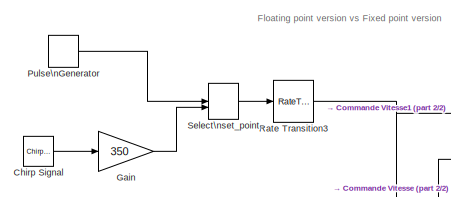
[diagram: root canvas - part 1/2, top left region]
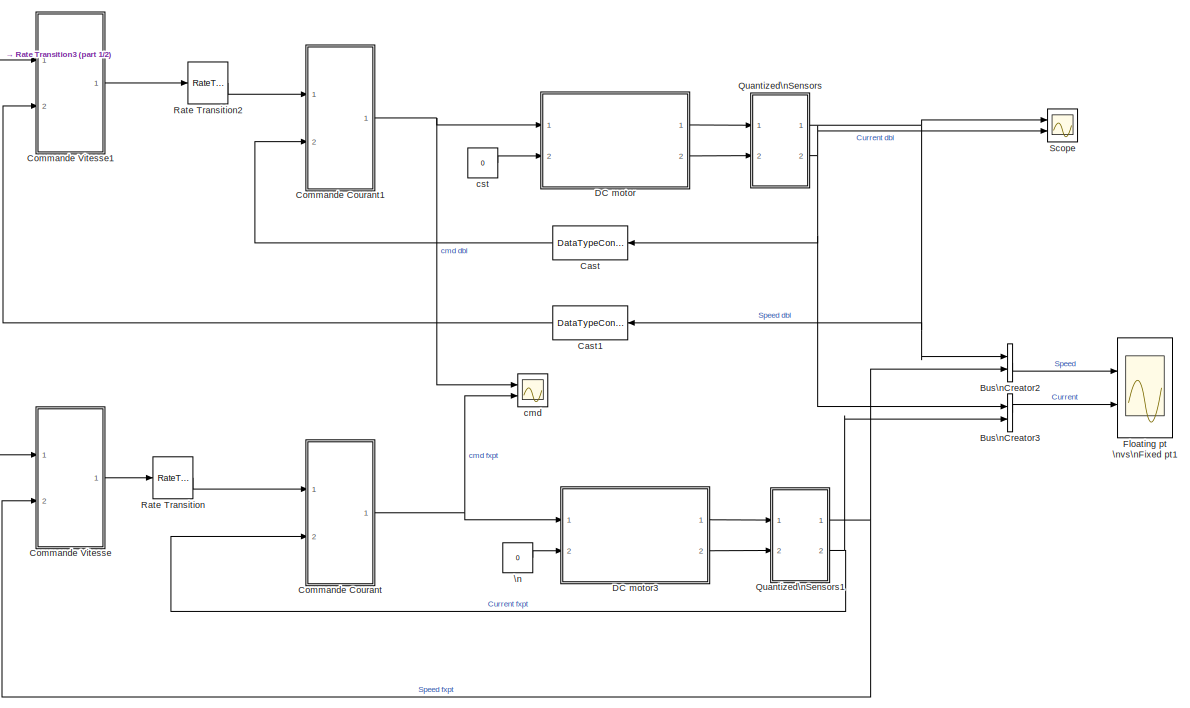
[diagram: root canvas - part 2/2, most of the canvas]
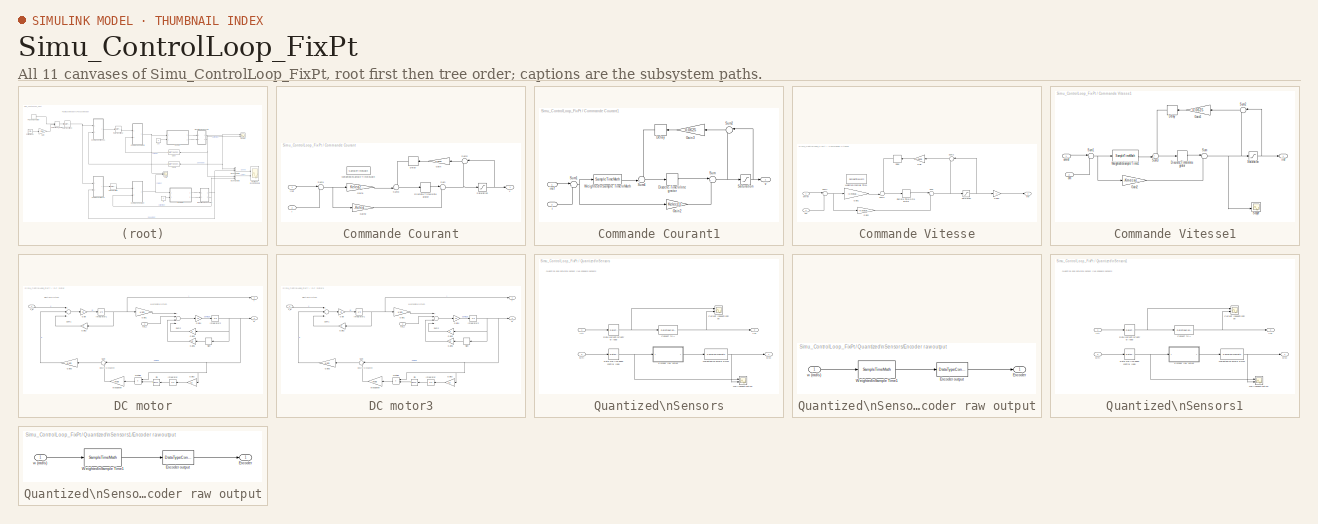
[diagram: thumbnail index - all 11 canvases of the model, root first then tree order]
MODEL Simu_ControlLoop_FixPt
KIND model
CONFIG PreLoadFcn = InitTPV0;
BLOCK [BusCreator] Bus\nCreator2
  DisplayOption = bar
  InheritFromInputs = on
  Inputs = 2
  Ports = [2, 1]
  SID = 991
BLOCK [BusCreator] Bus\nCreator3
  DisplayOption = bar
  InheritFromInputs = on
  Inputs = 2
  Ports = [2, 1]
  SID = 992
BLOCK [DataTypeConversion] Cast
  OutDataTypeStr = double
  RndMeth = Floor
  SID = 882
  SaturateOnIntegerOverflow = off
BLOCK [DataTypeConversion] Cast1
  OutDataTypeStr = double
  RndMeth = Floor
  SID = 883
  SaturateOnIntegerOverflow = off
BLOCK [Reference] Chirp Signal  REF=simulink/Sources/Chirp Signal
  Ports = [0, 1]
  SID = 884
  SourceBlock = simulink/Sources/Chirp Signal
  SourceProductBaseCode = SL
  SourceProductName = Simulink
  SourceType = chirp
  T = 20
  VectorParams1D = on
  f1 = 0.1
  f2 = 5
BLOCK [SubSystem] Commande Courant
  Ports = [2, 1]
  RequestExecContextInheritance = off
  SID = 63
BLOCK [Delay] Commande Courant/Delay
  DelayLength = 1
  InitialCondition = 0
  InputPortMap = u0
  Ports = [1, 1]
  SID = 617
BLOCK [DiscreteIntegrator] Commande Courant/Discrete-Time\nIntegrator
  ICPrevOutput = DiscIntNeverNeededParam
  ICPrevScaledInput = DiscIntNeverNeededParam
  InitialConditionSetting = Auto
  IntegratorMethod = Accumulation: Backward Euler
  OutDataTypeStr = fixdt(1,32)
  OutMax = Vmax*2
  Ports = [1, 1]
  SID = 323
  SampleTime = .00005
  SaturateOnIntegerOverflow = on
BLOCK [Gain] Commande Courant/Gain
  Gain = 0.0625
  OutDataTypeStr = Inherit: Inherit via back propagation
  ParamDataTypeStr = Inherit: Inherit via internal rule
  SID = 616
BLOCK [Gain] Commande Courant/Gain1
  Gain = Kelec(2)*Ts
  OutDataTypeStr = fixdt(1,16)
  OutMax = 2*Imax*Kelec(2)*Ts
  ParamDataTypeStr = Inherit: Inherit via internal rule
  SID = 139
BLOCK [Gain] Commande Courant/Gain2
  Gain = -Kelec(1)
  OutDataTypeStr = fixdt(1,16)
  OutMax = Vmax
  ParamDataTypeStr = Inherit: Inherit via internal rule
  SID = 146
BLOCK [Saturate] Commande Courant/Saturation
  InputPortMap = u0
  LowerLimit = -Vmax
  Ports = [1, 1]
  SID = 311
  UpperLimit = Vmax
BLOCK [Sum] Commande Courant/Sum
  IconShape = round
  InputSameDT = off
  Inputs = |++
  OutDataTypeStr = fixdt(1,16)
  OutMax = Vmax*2
  Ports = [2, 1]
  SID = 141
BLOCK [Sum] Commande Courant/Sum1
  IconShape = round
  InputSameDT = off
  Inputs = |+-
  OutDataTypeStr = fixdt(1,16,12)
  Ports = [2, 1]
  SID = 142
BLOCK [Sum] Commande Courant/Sum2
  AccumDataTypeStr = Inherit: Same as first input
  IconShape = round
  InputSameDT = off
  Inputs = |-+
  Ports = [2, 1]
  SID = 365
  SaturateOnIntegerOverflow = off
BLOCK [Sum] Commande Courant/Sum3
  IconShape = round
  Inputs = -+|
  OutDataTypeStr = Inherit: Same as accumulator
  Ports = [2, 1]
  SID = 366
BLOCK [SampleTimeMath] Commande Courant/Weighted\nSample Time\nMath
  SID = 682
  TsampMathImp = Offline Scaling Adjustment
  TsampMathOp = *
  weightValue = Kelec(2)
BLOCK [Inport] Commande Courant/i
  IconDisplay = Port number
  Port = 2
  SID = 136
BLOCK [Inport] Commande Courant/iref
  IconDisplay = Port number
  SID = 135
BLOCK [Outport] Commande Courant/v
  IconDisplay = Port number
  SID = 143
BLOCK [SubSystem] Commande Courant1
  Ports = [2, 1]
  RequestExecContextInheritance = off
  SID = 885
BLOCK [Delay] Commande Courant1/Delay
  DelayLength = 1
  InitialCondition = 0
  InputPortMap = u0
  Ports = [1, 1]
  SID = 888
BLOCK [DiscreteIntegrator] Commande Courant1/Discrete-Time\nIntegrator
  ICPrevOutput = DiscIntNeverNeededParam
  ICPrevScaledInput = DiscIntNeverNeededParam
  InitialConditionSetting = Auto
  IntegratorMethod = Accumulation: Backward Euler
  Ports = [1, 1]
  SID = 889
  SampleTime = -1
BLOCK [Gain] Commande Courant1/Gain2
  Gain = Kelec(1)
  OutDataTypeStr = Inherit: Inherit via internal rule
  ParamDataTypeStr = Inherit: Inherit via internal rule
  SID = 890
  SaturateOnIntegerOverflow = off
BLOCK [Gain] Commande Courant1/Gain3
  Gain = 0.0625
  OutDataTypeStr = Inherit: Inherit via internal rule
  ParamDataTypeStr = Inherit: Inherit via internal rule
  SID = 891
  SaturateOnIntegerOverflow = off
BLOCK [Saturate] Commande Courant1/Saturation
  InputPortMap = u0
  LowerLimit = -Vmax
  Ports = [1, 1]
  SID = 892
  UpperLimit = Vmax
BLOCK [Sum] Commande Courant1/Sum
  IconShape = round
  InputSameDT = off
  Inputs = |+-
  OutDataTypeStr = Inherit: Inherit via internal rule
  Ports = [2, 1]
  SID = 893
  SaturateOnIntegerOverflow = off
BLOCK [Sum] Commande Courant1/Sum1
  IconShape = round
  InputSameDT = off
  Inputs = |+-
  OutDataTypeStr = Inherit: Inherit via internal rule
  Ports = [2, 1]
  SID = 894
  SaturateOnIntegerOverflow = off
BLOCK [Sum] Commande Courant1/Sum2
  AccumDataTypeStr = Inherit: Same as first input
  IconShape = round
  InputSameDT = off
  Inputs = |-+
  OutDataTypeStr = Inherit: Same as accumulator
  Ports = [2, 1]
  SID = 895
  SaturateOnIntegerOverflow = off
BLOCK [Sum] Commande Courant1/Sum4
  IconShape = round
  InputSameDT = off
  Inputs = -+|
  OutDataTypeStr = Inherit: Inherit via internal rule
  Ports = [2, 1]
  SID = 896
  SaturateOnIntegerOverflow = off
BLOCK [SampleTimeMath] Commande Courant1/Weighted\nSample Time\nMath
  SID = 897
  TsampMathImp = Offline Scaling Adjustment
  TsampMathOp = *
  weightValue = Kelec(2)
BLOCK [Inport] Commande Courant1/i
  IconDisplay = Port number
  Port = 2
  SID = 887
BLOCK [Inport] Commande Courant1/iref
  IconDisplay = Port number
  SID = 886
BLOCK [Outport] Commande Courant1/v
  IconDisplay = Port number
  SID = 898
BLOCK [SubSystem] Commande Vitesse
  Ports = [2, 1]
  RequestExecContextInheritance = off
  SID = 148
BLOCK [Delay] Commande Vitesse/Delay
  DelayLength = 1
  InitialCondition = 0
  InputPortMap = u0
  Ports = [1, 1]
  SID = 614
BLOCK [DiscreteIntegrator] Commande Vitesse/Discrete-Time\nIntegrator
  ICPrevOutput = DiscIntNeverNeededParam
  ICPrevScaledInput = DiscIntNeverNeededParam
  InitialConditionSetting = Auto
  IntegratorMethod = Accumulation: Backward Euler
  OutDataTypeStr = fixdt(1,32)
  OutMax = Imax*2
  OutMin = 0
  Ports = [1, 1]
  SID = 324
  SampleTime = .002
  SaturateOnIntegerOverflow = on
BLOCK [Gain] Commande Vitesse/Gain
  Gain = 0.0625
  OutDataTypeStr = Inherit: Inherit via back propagation
  ParamDataTypeStr = Inherit: Inherit via internal rule
  SID = 577
BLOCK [Gain] Commande Vitesse/Gain1
  Gain = -Kmeca(2)*0.002
  OutDataTypeStr = fixdt(1,16)
  OutMax = abs(Wmax * Kmeca(2) * 0.002)
  OutMin = 0
  ParamDataTypeStr = Inherit: Inherit via internal rule
  SID = 179
  SaturateOnIntegerOverflow = off
BLOCK [Gain] Commande Vitesse/Gain2
  Gain = -Kmeca(1)
  OutDataTypeStr = fixdt(1,16)
  OutMax = Imax*2
  OutMin = -Imax*2
  ParamDataTypeStr = Inherit: Inherit via internal rule
  SID = 180
BLOCK [Gain] Commande Vitesse/Gain3
  Gain = -1
  OutMax = Imax
  OutMin = -Imax
  ParamDataTypeStr = Inherit: Inherit via internal rule
  SID = 407
BLOCK [Saturate] Commande Vitesse/Saturation
  InputPortMap = u0
  LowerLimit = -Imax
  Ports = [1, 1]
  SID = 291
  UpperLimit = Imax
BLOCK [Sum] Commande Vitesse/Sum
  IconShape = round
  InputSameDT = off
  Inputs = |++
  OutDataTypeStr = fixdt(1,16)
  OutMax = Imax*2
  OutMin = -Imax
  Ports = [2, 1]
  SID = 182
BLOCK [Sum] Commande Vitesse/Sum1
  IconShape = round
  InputSameDT = off
  Inputs = |+-
  OutDataTypeStr = fixdt(1,16)
  OutMax = Wmax*2
  OutMin = -Wmax*2
  Ports = [2, 1]
  SID = 183
  SaturateOnIntegerOverflow = off
BLOCK [Sum] Commande Vitesse/Sum2
  AccumDataTypeStr = Inherit: Same as first input
  IconShape = round
  InputSameDT = off
  Inputs = |-+
  OutDataTypeStr = Inherit: Same as accumulator
  Ports = [2, 1]
  SID = 367
  SaturateOnIntegerOverflow = off
BLOCK [Sum] Commande Vitesse/Sum3
  AccumDataTypeStr = Inherit: Same as first input
  IconShape = round
  Inputs = --|
  OutDataTypeStr = Inherit: Same as accumulator
  Ports = [2, 1]
  SID = 368
BLOCK [SampleTimeMath] Commande Vitesse/Weighted\nSample Time1
  SID = 681
  TsampMathImp = Offline Scaling Adjustment
  TsampMathOp = *
  weightValue = -Kmeca(2)
BLOCK [Outport] Commande Vitesse/iref
  IconDisplay = Port number
  SID = 184
BLOCK [Inport] Commande Vitesse/om
  IconDisplay = Port number
  Port = 2
  SID = 177
BLOCK [Inport] Commande Vitesse/omref
  IconDisplay = Port number
  OutDataTypeStr = fixdt(1,16)
  OutMax = Wmax
  SID = 176
BLOCK [SubSystem] Commande Vitesse1
  Ports = [2, 1]
  RequestExecContextInheritance = off
  SID = 899
BLOCK [Delay] Commande Vitesse1/Delay
  DelayLength = 1
  InitialCondition = 0
  InputPortMap = u0
  Ports = [1, 1]
  SID = 902
BLOCK [DiscreteIntegrator] Commande Vitesse1/Discrete-Time\nIntegrator
  ICPrevOutput = DiscIntNeverNeededParam
  ICPrevScaledInput = DiscIntNeverNeededParam
  InitialConditionSetting = Auto
  IntegratorMethod = Accumulation: Backward Euler
  Ports = [1, 1]
  SID = 903
  SampleTime = -1
BLOCK [Gain] Commande Vitesse1/Gain2
  Gain = -Kmeca(1)
  OutDataTypeStr = Inherit: Inherit via internal rule
  ParamDataTypeStr = Inherit: Inherit via internal rule
  SID = 904
  SaturateOnIntegerOverflow = off
BLOCK [Gain] Commande Vitesse1/Gain3
  Gain = 0.0625
  OutDataTypeStr = Inherit: Inherit via back propagation
  ParamDataTypeStr = Inherit: Inherit via internal rule
  SID = 905
  SaturateOnIntegerOverflow = off
BLOCK [Saturate] Commande Vitesse1/Saturation
  InputPortMap = u0
  LowerLimit = -Imax
  Ports = [1, 1]
  SID = 906
  UpperLimit = Imax
BLOCK [Scope] Commande Vitesse1/Scope
  Floating = off
  NumInputPorts = 2
  Ports = [2]
  SID = 907
  ScopeSpecificationString = Simulink.scopes.TimeScopeBlockCfg('CurrentConfiguration', extmgr.ConfigurationSet(extmgr.Configuration('Core','General UI',true),extmgr.Configuration('Core','Source UI',true),extmgr.Configuration('Sources','WiredSimulink',true,'DataLoggingVariableName','ScopeData4'),extmgr.Configuration('Visuals','Time Domain',true,'SerializedDisplays',{struct('MinYLimReal','-1.10037','MaxYLimReal','9.90335','YLab...<+1473ch>
BLOCK [Sum] Commande Vitesse1/Sum
  IconShape = round
  InputSameDT = off
  Inputs = |--
  OutDataTypeStr = Inherit: Inherit via internal rule
  Ports = [2, 1]
  SID = 908
  SaturateOnIntegerOverflow = off
BLOCK [Sum] Commande Vitesse1/Sum1
  IconShape = round
  InputSameDT = off
  Inputs = |+-
  OutDataTypeStr = Inherit: Inherit via internal rule
  Ports = [2, 1]
  SID = 909
  SaturateOnIntegerOverflow = off
BLOCK [Sum] Commande Vitesse1/Sum2
  AccumDataTypeStr = Inherit: Same as first input
  IconShape = round
  InputSameDT = off
  Inputs = |-+
  OutDataTypeStr = Inherit: Same as accumulator
  Ports = [2, 1]
  SID = 910
  SaturateOnIntegerOverflow = off
BLOCK [Sum] Commande Vitesse1/Sum3
  IconShape = round
  InputSameDT = off
  Inputs = ++|
  OutDataTypeStr = Inherit: Inherit via internal rule
  Ports = [2, 1]
  SID = 911
  SaturateOnIntegerOverflow = off
BLOCK [SampleTimeMath] Commande Vitesse1/Weighted\nSample Time1
  SID = 912
  TsampMathOp = *
  weightValue = Kmeca(2)
BLOCK [Outport] Commande Vitesse1/iref
  IconDisplay = Port number
  SID = 913
BLOCK [Inport] Commande Vitesse1/om
  IconDisplay = Port number
  Port = 2
  SID = 901
BLOCK [Inport] Commande Vitesse1/omref
  IconDisplay = Port number
  SID = 900
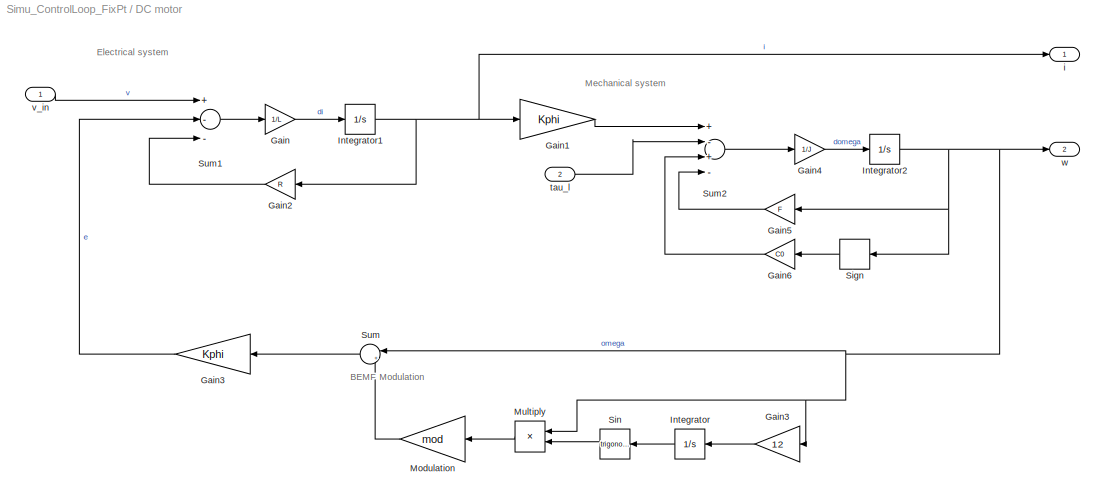
BLOCK [SubSystem] DC motor
  Ports = [2, 2]
  RequestExecContextInheritance = off
  SID = 914
BLOCK [Gain] DC motor/Gain
  Gain = 1/L
  OutDataTypeStr = Inherit: Inherit via internal rule
  ParamDataTypeStr = Inherit: Inherit via internal rule
  SID = 917
  SaturateOnIntegerOverflow = off
BLOCK [Gain] DC motor/Gain1
  Gain = Kphi
  OutDataTypeStr = Inherit: Inherit via internal rule
  ParamDataTypeStr = Inherit: Inherit via internal rule
  SID = 918
  SaturateOnIntegerOverflow = off
BLOCK [Gain] DC motor/Gain2
  Gain = R
  OutDataTypeStr = Inherit: Inherit via internal rule
  ParamDataTypeStr = Inherit: Inherit via internal rule
  SID = 919
  SaturateOnIntegerOverflow = off
BLOCK [Gain] DC motor/Gain3
  Gain = 12
  OutDataTypeStr = Inherit: Inherit via internal rule
  ParamDataTypeStr = Inherit: Inherit via internal rule
  SID = 920
  SaturateOnIntegerOverflow = off
BLOCK [Gain] DC motor/Gain3  
  Gain = Kphi
  OutDataTypeStr = Inherit: Inherit via internal rule
  ParamDataTypeStr = Inherit: Inherit via internal rule
  SID = 921
  SaturateOnIntegerOverflow = off
BLOCK [Gain] DC motor/Gain4
  Gain = 1/J
  OutDataTypeStr = Inherit: Inherit via internal rule
  ParamDataTypeStr = Inherit: Inherit via internal rule
  SID = 922
  SaturateOnIntegerOverflow = off
BLOCK [Gain] DC motor/Gain5
  Gain = F
  OutDataTypeStr = Inherit: Inherit via internal rule
  ParamDataTypeStr = Inherit: Inherit via internal rule
  SID = 923
  SaturateOnIntegerOverflow = off
BLOCK [Gain] DC motor/Gain6
  Gain = C0
  OutDataTypeStr = Inherit: Inherit via internal rule
  ParamDataTypeStr = Inherit: Inherit via internal rule
  SID = 924
  SaturateOnIntegerOverflow = off
BLOCK [Integrator] DC motor/Integrator
  Ports = [1, 1]
  SID = 925
  WrapState = on
BLOCK [Integrator] DC motor/Integrator1
  Ports = [1, 1]
  SID = 926
BLOCK [Integrator] DC motor/Integrator2
  Ports = [1, 1]
  SID = 927
BLOCK [Gain] DC motor/Modulation
  Gain = mod
  OutDataTypeStr = Inherit: Inherit via internal rule
  ParamDataTypeStr = Inherit: Inherit via internal rule
  SID = 928
  SaturateOnIntegerOverflow = off
BLOCK [Product] DC motor/Multiply
  InputSameDT = off
  OutDataTypeStr = Inherit: Inherit via internal rule
  Ports = [2, 1]
  RndMeth = Floor
  SID = 929
  SaturateOnIntegerOverflow = off
BLOCK [Signum] DC motor/Sign
  SID = 930
BLOCK [Trigonometry] DC motor/Sin
  Ports = [1, 1]
  SID = 931
BLOCK [Sum] DC motor/Sum
  IconShape = round
  InputSameDT = off
  Inputs = |++
  OutDataTypeStr = Inherit: Inherit via internal rule
  Ports = [2, 1]
  SID = 932
  SaturateOnIntegerOverflow = off
BLOCK [Sum] DC motor/Sum1
  InputSameDT = off
  Inputs = +--
  OutDataTypeStr = Inherit: Inherit via internal rule
  Ports = [3, 1]
  SID = 933
  SaturateOnIntegerOverflow = off
BLOCK [Sum] DC motor/Sum2
  InputSameDT = off
  Inputs = +-+-
  OutDataTypeStr = Inherit: Inherit via internal rule
  Ports = [4, 1]
  SID = 934
  SaturateOnIntegerOverflow = off
BLOCK [Outport] DC motor/i
  IconDisplay = Port number
  SID = 935
BLOCK [Inport] DC motor/tau_l
  IconDisplay = Port number
  Port = 2
  SID = 916
BLOCK [Inport] DC motor/v_in
  IconDisplay = Port number
  SID = 915
  SampleTime = 0
BLOCK [Outport] DC motor/w
  IconDisplay = Port number
  Port = 2
  SID = 936
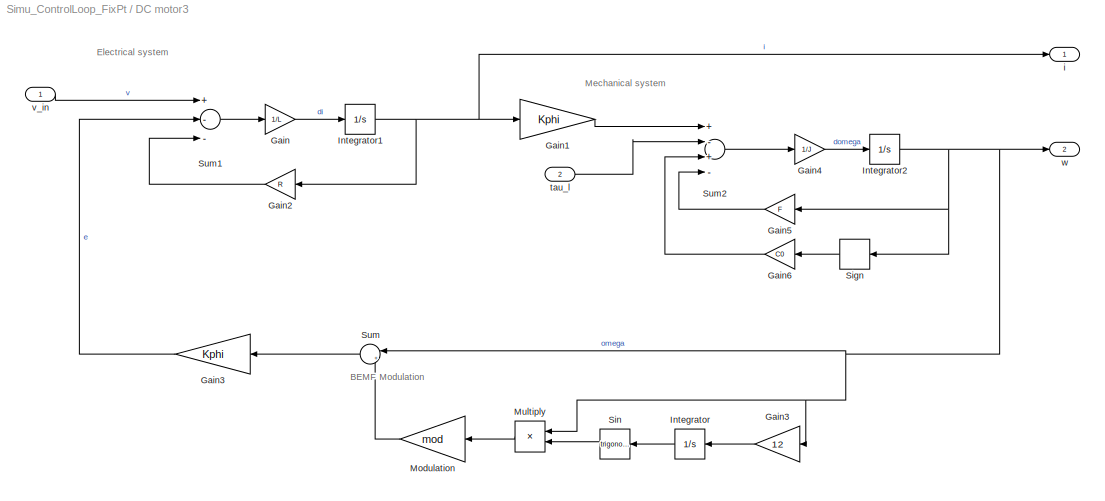
BLOCK [SubSystem] DC motor3
  Ports = [2, 2]
  RequestExecContextInheritance = off
  SID = 788
BLOCK [Gain] DC motor3/Gain
  Gain = 1/L
  OutDataTypeStr = Inherit: Inherit via internal rule
  ParamDataTypeStr = Inherit: Inherit via internal rule
  SID = 791
  SaturateOnIntegerOverflow = off
BLOCK [Gain] DC motor3/Gain1
  Gain = Kphi
  OutDataTypeStr = Inherit: Inherit via internal rule
  ParamDataTypeStr = Inherit: Inherit via internal rule
  SID = 792
  SaturateOnIntegerOverflow = off
BLOCK [Gain] DC motor3/Gain2
  Gain = R
  OutDataTypeStr = Inherit: Inherit via internal rule
  ParamDataTypeStr = Inherit: Inherit via internal rule
  SID = 793
  SaturateOnIntegerOverflow = off
BLOCK [Gain] DC motor3/Gain3
  Gain = 12
  OutDataTypeStr = Inherit: Inherit via internal rule
  ParamDataTypeStr = Inherit: Inherit via internal rule
  SID = 794
  SaturateOnIntegerOverflow = off
BLOCK [Gain] DC motor3/Gain3  
  Gain = Kphi
  OutDataTypeStr = Inherit: Inherit via internal rule
  ParamDataTypeStr = Inherit: Inherit via internal rule
  SID = 795
  SaturateOnIntegerOverflow = off
BLOCK [Gain] DC motor3/Gain4
  Gain = 1/J
  OutDataTypeStr = Inherit: Inherit via internal rule
  ParamDataTypeStr = Inherit: Inherit via internal rule
  SID = 796
  SaturateOnIntegerOverflow = off
BLOCK [Gain] DC motor3/Gain5
  Gain = F
  OutDataTypeStr = Inherit: Inherit via internal rule
  ParamDataTypeStr = Inherit: Inherit via internal rule
  SID = 797
  SaturateOnIntegerOverflow = off
BLOCK [Gain] DC motor3/Gain6
  Gain = C0
  OutDataTypeStr = Inherit: Inherit via internal rule
  ParamDataTypeStr = Inherit: Inherit via internal rule
  SID = 798
  SaturateOnIntegerOverflow = off
BLOCK [Integrator] DC motor3/Integrator
  Ports = [1, 1]
  SID = 799
  WrapState = on
BLOCK [Integrator] DC motor3/Integrator1
  Ports = [1, 1]
  SID = 800
BLOCK [Integrator] DC motor3/Integrator2
  Ports = [1, 1]
  SID = 801
BLOCK [Gain] DC motor3/Modulation
  Gain = mod
  OutDataTypeStr = Inherit: Inherit via internal rule
  ParamDataTypeStr = Inherit: Inherit via internal rule
  SID = 802
  SaturateOnIntegerOverflow = off
BLOCK [Product] DC motor3/Multiply
  InputSameDT = off
  OutDataTypeStr = Inherit: Inherit via internal rule
  Ports = [2, 1]
  RndMeth = Floor
  SID = 803
  SaturateOnIntegerOverflow = off
BLOCK [Signum] DC motor3/Sign
  SID = 804
BLOCK [Trigonometry] DC motor3/Sin
  Ports = [1, 1]
  SID = 805
BLOCK [Sum] DC motor3/Sum
  IconShape = round
  InputSameDT = off
  Inputs = |++
  OutDataTypeStr = Inherit: Inherit via internal rule
  Ports = [2, 1]
  SID = 806
  SaturateOnIntegerOverflow = off
BLOCK [Sum] DC motor3/Sum1
  InputSameDT = off
  Inputs = +--
  OutDataTypeStr = Inherit: Inherit via internal rule
  Ports = [3, 1]
  SID = 807
  SaturateOnIntegerOverflow = off
BLOCK [Sum] DC motor3/Sum2
  InputSameDT = off
  Inputs = +-+-
  OutDataTypeStr = Inherit: Inherit via internal rule
  Ports = [4, 1]
  SID = 808
  SaturateOnIntegerOverflow = off
BLOCK [Outport] DC motor3/i
  IconDisplay = Port number
  SID = 809
BLOCK [Inport] DC motor3/tau_l
  IconDisplay = Port number
  Port = 2
  SID = 790
BLOCK [Inport] DC motor3/v_in
  IconDisplay = Port number
  SID = 789
  SampleTime = 0
BLOCK [Outport] DC motor3/w
  IconDisplay = Port number
  Port = 2
  SID = 810
BLOCK [Scope] Floating pt \nvs\nFixed pt1
  Floating = off
  NumInputPorts = 2
  Ports = [2]
  SID = 993
  ScopeSpecificationString = Simulink.scopes.TimeScopeBlockCfg('CurrentConfiguration', extmgr.ConfigurationSet(extmgr.Configuration('Core','General UI',true),extmgr.Configuration('Core','Source UI',true),extmgr.Configuration('Sources','WiredSimulink',true,'DataLoggingVariableName','ScopeData3'),extmgr.Configuration('Visuals','Time Domain',true,'SerializedDisplays',{struct('MinYLimReal','-540.35394','MaxYLimReal','464.95571','...<+2130ch>
BLOCK [Gain] Gain
  Gain = 350
  OutDataTypeStr = Inherit: Inherit via back propagation
  ParamDataTypeStr = Inherit: Inherit via internal rule
  SID = 940
  SaturateOnIntegerOverflow = off
BLOCK [DiscretePulseGenerator] Pulse\nGenerator
  Amplitude = 200
  PhaseDelay = 0.5
  Ports = [0, 1]
  PulseType = Time based
  PulseWidth = 50
  SID = 941
  SampleTime = -1
BLOCK [SubSystem] Quantized\nSensors
  Ports = [2, 2]
  RequestExecContextInheritance = off
  SID = 942
BLOCK [DataTypeConversion] Quantized\nSensors/Convert to A
  LockScale = on
  OutDataTypeStr = fixdt(1,16,4.4/32768,0)
  RndMeth = Floor
  SID = 945
BLOCK [Scope] Quantized\nSensors/Current \nquantization
  Floating = off
  NumInputPorts = 2
  Ports = [2]
  SID = 946
  ScopeSpecificationString = Simulink.scopes.TimeScopeBlockCfg('CurrentConfiguration', extmgr.ConfigurationSet(extmgr.Configuration('Core','General UI',true),extmgr.Configuration('Core','Source UI',true),extmgr.Configuration('Sources','WiredSimulink',true,'DataLoggingVariableName','ScopeData1'),extmgr.Configuration('Visuals','Time Domain',true,'SerializedDisplays',{struct('MinYLimReal','-4.53222','MaxYLimReal','18.09714','YLa...<+1513ch>
BLOCK [SubSystem] Quantized\nSensors/Encoder raw output
  Ports = [1, 1]
  RequestExecContextInheritance = off
  SID = 947
BLOCK [Outport] Quantized\nSensors/Encoder raw output/Encoder
  IconDisplay = Port number
  SID = 951
BLOCK [DataTypeConversion] Quantized\nSensors/Encoder raw output/Encoder output
  LockScale = on
  OutDataTypeStr = int16
  RndMeth = Floor
  SID = 949
BLOCK [SampleTimeMath] Quantized\nSensors/Encoder raw output/Weighted\nSample Time1
  SID = 950
  TsampMathOp = *
  weightValue = 1000/pi
BLOCK [Inport] Quantized\nSensors/Encoder raw output/w (rad//s)
  IconDisplay = Port number
  SID = 948
BLOCK [Scope] Quantized\nSensors/QEI\nquantization
  Floating = off
  NumInputPorts = 2
  Ports = [2]
  SID = 952
  ScopeSpecificationString = Simulink.scopes.TimeScopeBlockCfg('CurrentConfiguration', extmgr.ConfigurationSet(extmgr.Configuration('Core','General UI',true),extmgr.Configuration('Core','Source UI',true),extmgr.Configuration('Sources','WiredSimulink',true,'DataLoggingVariableName','ScopeData2'),extmgr.Configuration('Visuals','Time Domain',true,'SerializedDisplays',{struct('MinYLimReal','-26.77669','MaxYLimReal','240.99021','Y...<+1530ch>
BLOCK [RateTransition] Quantized\nSensors/Rate QEI\nSpeed control loop
  Deterministic = off
  OutPortSampleTime = .002
  SID = 953
BLOCK [RateTransition] Quantized\nSensors/Rate current\nControl loop
  Deterministic = off
  OutPortSampleTime = 50e-6
  SID = 954
BLOCK [SampleTimeMath] Quantized\nSensors/Weighted\nSample Time1
  SID = 955
  TsampMathImp = Offline Scaling Adjustment
  TsampMathOp = /
  weightValue = 1000/pi
BLOCK [Outport] Quantized\nSensors/i(k)
  IconDisplay = Port number
  Port = 2
  SID = 957
BLOCK [Inport] Quantized\nSensors/i(t)
  IconDisplay = Port number
  SID = 943
BLOCK [Outport] Quantized\nSensors/w(k)
  IconDisplay = Port number
  SID = 956
BLOCK [Inport] Quantized\nSensors/w(t)
  IconDisplay = Port number
  Port = 2
  SID = 944
BLOCK [SubSystem] Quantized\nSensors1
  Ports = [2, 2]
  RequestExecContextInheritance = off
  SID = 971
BLOCK [DataTypeConversion] Quantized\nSensors1/Convert to A
  LockScale = on
  OutDataTypeStr = fixdt(1,16,4.4/32768,0)
  RndMeth = Floor
  SID = 974
BLOCK [Scope] Quantized\nSensors1/Current \nquantization
  Floating = off
  NumInputPorts = 2
  Ports = [2]
  SID = 975
  ScopeSpecificationString = Simulink.scopes.TimeScopeBlockCfg('CurrentConfiguration', extmgr.ConfigurationSet(extmgr.Configuration('Core','General UI',true),extmgr.Configuration('Core','Source UI',true),extmgr.Configuration('Sources','WiredSimulink',true,'DataLoggingVariableName','ScopeData1'),extmgr.Configuration('Visuals','Time Domain',true,'SerializedDisplays',{struct('MinYLimReal','-4.53222','MaxYLimReal','18.09714','YLa...<+1513ch>
BLOCK [SubSystem] Quantized\nSensors1/Encoder raw output
  Ports = [1, 1]
  RequestExecContextInheritance = off
  SID = 976
BLOCK [Outport] Quantized\nSensors1/Encoder raw output/Encoder
  IconDisplay = Port number
  SID = 980
BLOCK [DataTypeConversion] Quantized\nSensors1/Encoder raw output/Encoder output
  LockScale = on
  OutDataTypeStr = int16
  RndMeth = Floor
  SID = 978
BLOCK [SampleTimeMath] Quantized\nSensors1/Encoder raw output/Weighted\nSample Time1
  SID = 979
  TsampMathOp = *
  weightValue = 1000/pi
BLOCK [Inport] Quantized\nSensors1/Encoder raw output/w (rad//s)
  IconDisplay = Port number
  SID = 977
BLOCK [Scope] Quantized\nSensors1/QEI\nquantization
  Floating = off
  NumInputPorts = 2
  Ports = [2]
  SID = 981
  ScopeSpecificationString = Simulink.scopes.TimeScopeBlockCfg('CurrentConfiguration', extmgr.ConfigurationSet(extmgr.Configuration('Core','General UI',true),extmgr.Configuration('Core','Source UI',true),extmgr.Configuration('Sources','WiredSimulink',true,'DataLoggingVariableName','ScopeData2'),extmgr.Configuration('Visuals','Time Domain',true,'SerializedDisplays',{struct('MinYLimReal','-26.77669','MaxYLimReal','240.99021','Y...<+1530ch>
BLOCK [RateTransition] Quantized\nSensors1/Rate QEI\nSpeed control loop
  Deterministic = off
  OutPortSampleTime = .002
  SID = 982
BLOCK [RateTransition] Quantized\nSensors1/Rate current\nControl loop
  Deterministic = off
  OutPortSampleTime = 50e-6
  SID = 983
BLOCK [SampleTimeMath] Quantized\nSensors1/Weighted\nSample Time1
  SID = 984
  TsampMathImp = Offline Scaling Adjustment
  TsampMathOp = /
  weightValue = 1000/pi
BLOCK [Outport] Quantized\nSensors1/i(k)
  IconDisplay = Port number
  Port = 2
  SID = 986
BLOCK [Inport] Quantized\nSensors1/i(t)
  IconDisplay = Port number
  SID = 972
BLOCK [Outport] Quantized\nSensors1/w(k)
  IconDisplay = Port number
  SID = 985
BLOCK [Inport] Quantized\nSensors1/w(t)
  IconDisplay = Port number
  Port = 2
  SID = 973
BLOCK [RateTransition] Rate Transition
  Deterministic = off
  OutPortSampleTime = 50e-6
  SID = 327
BLOCK [RateTransition] Rate Transition2
  Deterministic = off
  SID = 959
BLOCK [RateTransition] Rate Transition3
  Deterministic = off
  SID = 960
BLOCK [Scope] Scope
  Floating = off
  NumInputPorts = 2
  Ports = [2]
  SID = 961
  ScopeSpecificationString = Simulink.scopes.TimeScopeBlockCfg('CurrentConfiguration', extmgr.ConfigurationSet(extmgr.Configuration('Core','General UI',true),extmgr.Configuration('Core','Source UI',true),extmgr.Configuration('Sources','WiredSimulink',true,'DataLoggingVariableName','ScopeData1'),extmgr.Configuration('Visuals','Time Domain',true,'SerializedDisplays',{struct('MinYLimReal','-540.35394','MaxYLimReal','464.95571','...<+2068ch>
BLOCK [ManualSwitch] Select\nset_point
  SID = 962
BLOCK [Constant] \n
  OutDataTypeStr = Inherit: Inherit via back propagation
  SID = 208
  Value = 0
BLOCK [Scope] cmd
  Floating = off
  NumInputPorts = 2
  Ports = [2]
  SID = 994
  ScopeSpecificationString = Simulink.scopes.TimeScopeBlockCfg('CurrentConfiguration', extmgr.ConfigurationSet(extmgr.Configuration('Core','General UI',true),extmgr.Configuration('Core','Source UI',true),extmgr.Configuration('Sources','WiredSimulink',true,'DataLoggingVariableName','ScopeData4'),extmgr.Configuration('Visuals','Time Domain',true,'SerializedDisplays',{struct('MinYLimReal','-13.47824','MaxYLimReal','21.79657','YL...<+1531ch>
BLOCK [Constant] cst
  SID = 970
  Value = 0
ANNOTATION (root): \n \n Floating point version vs Fixed point version
ANNOTATION DC motor: BEMF Modulation
ANNOTATION DC motor: Electrical system
ANNOTATION DC motor: Mechanical system
ANNOTATION DC motor3: BEMF Modulation
ANNOTATION DC motor3: Electrical system
ANNOTATION DC motor3: Mechanical system
ANNOTATION Quantized\nSensors: \n \n Quantize and saturate sensor like onboard sensors \n \n Note QEI resolution vary with its sampling rate: \n the lower the sampling for QEI, the higher its resolution. \n \n Modify sampling rate (through the rate transition block) of inner and outer loop and see impact on simulation \n \n Default values: 50us for current control loop, 2ms for speed control loop
ANNOTATION Quantized\nSensors1: \n \n Quantize and saturate sensor like onboard sensors \n \n Note QEI resolution vary with its sampling rate: \n the lower the sampling for QEI, the higher its resolution. \n \n Modify sampling rate (through the rate transition block) of inner and outer loop and see impact on simulation \n \n Default values: 50us for current control loop, 2ms for speed control loop
LINE Bus\nCreator2:1 -> Floating pt \nvs\nFixed pt1:1
LINE Bus\nCreator3:1 -> Floating pt \nvs\nFixed pt1:2
LINE Cast1:1 -> Commande Vitesse1:2
LINE Cast:1 -> Commande Courant1:2
LINE Chirp Signal:1 -> Gain:1
LINE Commande Courant/Delay:1 -> Commande Courant/Sum3:1
LINE Commande Courant/Discrete-Time\nIntegrator:1 -> Commande Courant/Sum:1
LINE Commande Courant/Gain1:1 -> Commande Courant/Sum3:2
LINE Commande Courant/Gain2:1 -> Commande Courant/Sum:2
LINE Commande Courant/Gain:1 -> Commande Courant/Delay:1
NET Commande Courant/Saturation:1 -> Commande Courant/Sum2:1, Commande Courant/v:1
NET Commande Courant/Sum1:1 -> Commande Courant/Gain1:1, Commande Courant/Gain2:1
LINE Commande Courant/Sum2:1 -> Commande Courant/Gain:1
LINE Commande Courant/Sum3:1 -> Commande Courant/Discrete-Time\nIntegrator:1
NET Commande Courant/Sum:1 -> Commande Courant/Saturation:1, Commande Courant/Sum2:2
LINE Commande Courant/i:1 -> Commande Courant/Sum1:2
LINE Commande Courant/iref:1 -> Commande Courant/Sum1:1
LINE Commande Courant1/Delay:1 -> Commande Courant1/Sum4:1
LINE Commande Courant1/Discrete-Time\nIntegrator:1 -> Commande Courant1/Sum:1
LINE Commande Courant1/Gain2:1 -> Commande Courant1/Sum:2
LINE Commande Courant1/Gain3:1 -> Commande Courant1/Delay:1
NET Commande Courant1/Saturation:1 -> Commande Courant1/Sum2:1, Commande Courant1/v:1
NET Commande Courant1/Sum1:1 -> Commande Courant1/Gain2:1, Commande Courant1/Weighted\nSample Time\nMath:1
LINE Commande Courant1/Sum2:1 -> Commande Courant1/Gain3:1
LINE Commande Courant1/Sum4:1 -> Commande Courant1/Discrete-Time\nIntegrator:1
NET Commande Courant1/Sum:1 -> Commande Courant1/Saturation:1, Commande Courant1/Sum2:2
LINE Commande Courant1/Weighted\nSample Time\nMath:1 -> Commande Courant1/Sum4:2
LINE Commande Courant1/i:1 -> Commande Courant1/Sum1:2
LINE Commande Courant1/iref:1 -> Commande Courant1/Sum1:1
NET Commande Courant1:1 -> DC motor:1, cmd:1
NET Commande Courant:1 -> DC motor3:1, cmd:2
LINE Commande Vitesse/Delay:1 -> Commande Vitesse/Sum3:1
LINE Commande Vitesse/Discrete-Time\nIntegrator:1 -> Commande Vitesse/Sum:1
LINE Commande Vitesse/Gain1:1 -> Commande Vitesse/Sum3:2
LINE Commande Vitesse/Gain2:1 -> Commande Vitesse/Sum:2
LINE Commande Vitesse/Gain3:1 -> Commande Vitesse/iref:1
LINE Commande Vitesse/Gain:1 -> Commande Vitesse/Delay:1
NET Commande Vitesse/Saturation:1 -> Commande Vitesse/Gain3:1, Commande Vitesse/Sum2:1
NET Commande Vitesse/Sum1:1 -> Commande Vitesse/Gain1:1, Commande Vitesse/Gain2:1
LINE Commande Vitesse/Sum2:1 -> Commande Vitesse/Gain:1
LINE Commande Vitesse/Sum3:1 -> Commande Vitesse/Discrete-Time\nIntegrator:1
NET Commande Vitesse/Sum:1 -> Commande Vitesse/Saturation:1, Commande Vitesse/Sum2:2
LINE Commande Vitesse/om:1 -> Commande Vitesse/Sum1:2
LINE Commande Vitesse/omref:1 -> Commande Vitesse/Sum1:1
LINE Commande Vitesse1/Delay:1 -> Commande Vitesse1/Sum3:1
LINE Commande Vitesse1/Discrete-Time\nIntegrator:1 -> Commande Vitesse1/Sum:1
LINE Commande Vitesse1/Gain2:1 -> Commande Vitesse1/Sum:2
LINE Commande Vitesse1/Gain3:1 -> Commande Vitesse1/Delay:1
NET Commande Vitesse1/Saturation:1 -> Commande Vitesse1/Sum2:1, Commande Vitesse1/iref:1
NET Commande Vitesse1/Sum1:1 -> Commande Vitesse1/Gain2:1, Commande Vitesse1/Weighted\nSample Time1:1
LINE Commande Vitesse1/Sum2:1 -> Commande Vitesse1/Gain3:1
LINE Commande Vitesse1/Sum3:1 -> Commande Vitesse1/Discrete-Time\nIntegrator:1
NET Commande Vitesse1/Sum:1 -> Commande Vitesse1/Saturation:1, Commande Vitesse1/Scope:2, Commande Vitesse1/Sum2:2
LINE Commande Vitesse1/Weighted\nSample Time1:1 -> Commande Vitesse1/Sum3:2
LINE Commande Vitesse1/om:1 -> Commande Vitesse1/Sum1:2
LINE Commande Vitesse1/omref:1 -> Commande Vitesse1/Sum1:1
LINE Commande Vitesse1:1 -> Rate Transition2:1
LINE Commande Vitesse:1 -> Rate Transition:1
LINE DC motor/Gain1:1 -> DC motor/Sum2:1
LINE DC motor/Gain2:1 -> DC motor/Sum1:3
LINE DC motor/Gain3  :1 -> DC motor/Sum1:2
LINE DC motor/Gain3:1 -> DC motor/Integrator:1
LINE DC motor/Gain4:1 -> DC motor/Integrator2:1
LINE DC motor/Gain5:1 -> DC motor/Sum2:4
LINE DC motor/Gain6:1 -> DC motor/Sum2:3
LINE DC motor/Gain:1 -> DC motor/Integrator1:1
NET DC motor/Integrator1:1 -> DC motor/Gain1:1, DC motor/Gain2:1, DC motor/i:1
NET DC motor/Integrator2:1 -> DC motor/Gain3:1, DC motor/Gain5:1, DC motor/Multiply:1, DC motor/Sign:1, DC motor/Sum:1, DC motor/w:1
LINE DC motor/Integrator:1 -> DC motor/Sin:1
LINE DC motor/Modulation:1 -> DC motor/Sum:2
LINE DC motor/Multiply:1 -> DC motor/Modulation:1
LINE DC motor/Sign:1 -> DC motor/Gain6:1
LINE DC motor/Sin:1 -> DC motor/Multiply:2
LINE DC motor/Sum1:1 -> DC motor/Gain:1
LINE DC motor/Sum2:1 -> DC motor/Gain4:1
LINE DC motor/Sum:1 -> DC motor/Gain3  :1
LINE DC motor/tau_l:1 -> DC motor/Sum2:2
LINE DC motor/v_in:1 -> DC motor/Sum1:1
LINE DC motor3/Gain1:1 -> DC motor3/Sum2:1
LINE DC motor3/Gain2:1 -> DC motor3/Sum1:3
LINE DC motor3/Gain3  :1 -> DC motor3/Sum1:2
LINE DC motor3/Gain3:1 -> DC motor3/Integrator:1
LINE DC motor3/Gain4:1 -> DC motor3/Integrator2:1
LINE DC motor3/Gain5:1 -> DC motor3/Sum2:4
LINE DC motor3/Gain6:1 -> DC motor3/Sum2:3
LINE DC motor3/Gain:1 -> DC motor3/Integrator1:1
NET DC motor3/Integrator1:1 -> DC motor3/Gain1:1, DC motor3/Gain2:1, DC motor3/i:1
NET DC motor3/Integrator2:1 -> DC motor3/Gain3:1, DC motor3/Gain5:1, DC motor3/Multiply:1, DC motor3/Sign:1, DC motor3/Sum:1, DC motor3/w:1
LINE DC motor3/Integrator:1 -> DC motor3/Sin:1
LINE DC motor3/Modulation:1 -> DC motor3/Sum:2
LINE DC motor3/Multiply:1 -> DC motor3/Modulation:1
LINE DC motor3/Sign:1 -> DC motor3/Gain6:1
LINE DC motor3/Sin:1 -> DC motor3/Multiply:2
LINE DC motor3/Sum1:1 -> DC motor3/Gain:1
LINE DC motor3/Sum2:1 -> DC motor3/Gain4:1
LINE DC motor3/Sum:1 -> DC motor3/Gain3  :1
LINE DC motor3/tau_l:1 -> DC motor3/Sum2:2
LINE DC motor3/v_in:1 -> DC motor3/Sum1:1
LINE DC motor3:1 -> Quantized\nSensors1:1
LINE DC motor3:2 -> Quantized\nSensors1:2
LINE DC motor:1 -> Quantized\nSensors:1
LINE DC motor:2 -> Quantized\nSensors:2
LINE Gain:1 -> Select\nset_point:2
LINE Pulse\nGenerator:1 -> Select\nset_point:1
NET Quantized\nSensors/Convert to A:1 -> Quantized\nSensors/Current \nquantization:2, Quantized\nSensors/i(k):1
LINE Quantized\nSensors/Encoder raw output/Encoder output:1 -> Quantized\nSensors/Encoder raw output/Encoder:1
LINE Quantized\nSensors/Encoder raw output/Weighted\nSample Time1:1 -> Quantized\nSensors/Encoder raw output/Encoder output:1
LINE Quantized\nSensors/Encoder raw output/w (rad//s):1 -> Quantized\nSensors/Encoder raw output/Weighted\nSample Time1:1
LINE Quantized\nSensors/Encoder raw output:1 -> Quantized\nSensors/Weighted\nSample Time1:1
NET Quantized\nSensors/Rate QEI\nSpeed control loop:1 -> Quantized\nSensors/Encoder raw output:1, Quantized\nSensors/QEI\nquantization:1
NET Quantized\nSensors/Rate current\nControl loop:1 -> Quantized\nSensors/Convert to A:1, Quantized\nSensors/Current \nquantization:1
NET Quantized\nSensors/Weighted\nSample Time1:1 -> Quantized\nSensors/QEI\nquantization:2, Quantized\nSensors/w(k):1
LINE Quantized\nSensors/i(t):1 -> Quantized\nSensors/Rate current\nControl loop:1
LINE Quantized\nSensors/w(t):1 -> Quantized\nSensors/Rate QEI\nSpeed control loop:1
NET Quantized\nSensors1/Convert to A:1 -> Quantized\nSensors1/Current \nquantization:2, Quantized\nSensors1/i(k):1
LINE Quantized\nSensors1/Encoder raw output/Encoder output:1 -> Quantized\nSensors1/Encoder raw output/Encoder:1
LINE Quantized\nSensors1/Encoder raw output/Weighted\nSample Time1:1 -> Quantized\nSensors1/Encoder raw output/Encoder output:1
LINE Quantized\nSensors1/Encoder raw output/w (rad//s):1 -> Quantized\nSensors1/Encoder raw output/Weighted\nSample Time1:1
LINE Quantized\nSensors1/Encoder raw output:1 -> Quantized\nSensors1/Weighted\nSample Time1:1
NET Quantized\nSensors1/Rate QEI\nSpeed control loop:1 -> Quantized\nSensors1/Encoder raw output:1, Quantized\nSensors1/QEI\nquantization:1
NET Quantized\nSensors1/Rate current\nControl loop:1 -> Quantized\nSensors1/Convert to A:1, Quantized\nSensors1/Current \nquantization:1
NET Quantized\nSensors1/Weighted\nSample Time1:1 -> Quantized\nSensors1/QEI\nquantization:2, Quantized\nSensors1/w(k):1
LINE Quantized\nSensors1/i(t):1 -> Quantized\nSensors1/Rate current\nControl loop:1
LINE Quantized\nSensors1/w(t):1 -> Quantized\nSensors1/Rate QEI\nSpeed control loop:1
NET Quantized\nSensors1:1 -> Bus\nCreator2:2, Commande Vitesse:2
NET Quantized\nSensors1:2 -> Bus\nCreator3:2, Commande Courant:2
NET Quantized\nSensors:1 -> Bus\nCreator2:1, Cast1:1, Scope:1
NET Quantized\nSensors:2 -> Bus\nCreator3:1, Cast:1, Scope:2
LINE Rate Transition2:1 -> Commande Courant1:1
NET Rate Transition3:1 -> Commande Vitesse1:1, Commande Vitesse:1
LINE Rate Transition:1 -> Commande Courant:1
LINE Select\nset_point:1 -> Rate Transition3:1
LINE \n:1 -> DC motor3:2
LINE cst:1 -> DC motor:2
note: NET lines group one-source signal fan-out (src -> all destinations, sorted); 1:1 wires keep LINE
